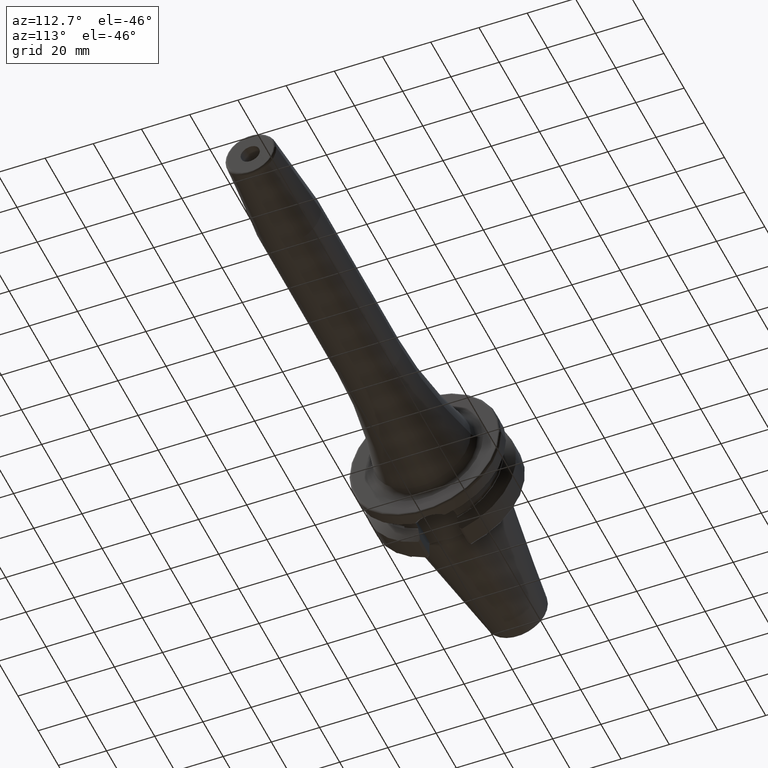
[diagram: clean part render]
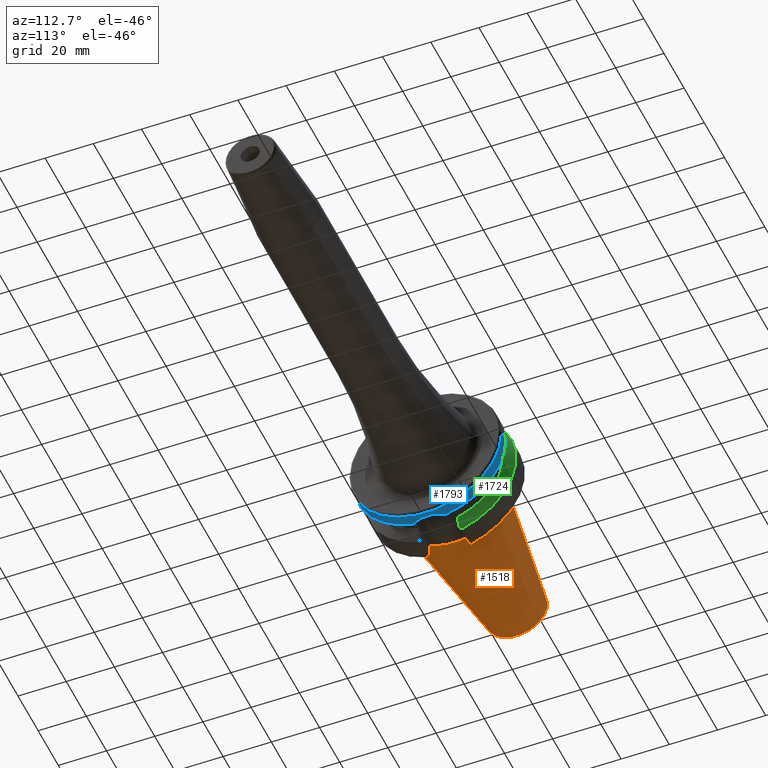
[diagram: same view with three faces highlighted in distinct colors, each labeled with its STEP entity id]
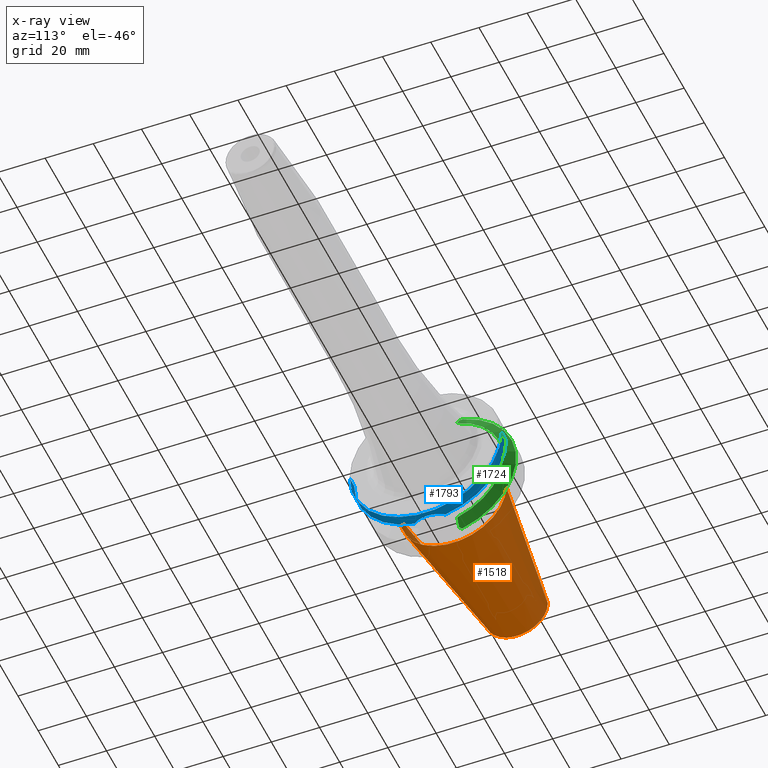
[diagram: x-ray of the same camera — body ghosted, the three highlighted faces saturated]
A machine part, auxiliary view with three faces highlighted in distinct colors.
The next image is the same camera in x-ray (body ghosted, the three faces saturated) — at least one of them is partly hidden behind the body in this view.
Their STEP definitions:

[orange] entity #1518 — the highlighted conical surface has half-angle 8.298 deg.
#32=CARTESIAN_POINT('',(-6.454431866917E1,0.E0,0.E0));
#33=DIRECTION('',(-1.E0,0.E0,0.E0));
#34=DIRECTION('',(0.E0,1.E0,0.E0));
#35=AXIS2_PLACEMENT_3D('',#32,#33,#34);
#47=DIRECTION('',(-9.895312636440E-1,-1.443186691705E-1,0.E0));
#48=VECTOR('',#47,6.394703124850E1);
#49=CARTESIAN_POINT('',(-1.266732031557E0,2.204025284980E1,0.E0));
#50=LINE('',#49,#48);
#51=DIRECTION('',(-9.895312636440E-1,1.443186691705E-1,0.E0));
#52=VECTOR('',#51,6.394703124850E1);
#53=CARTESIAN_POINT('',(-1.266732031557E0,-2.204025284980E1,0.E0));
#54=LINE('',#53,#52);
#55=CARTESIAN_POINT('',(-1.266732031557E0,0.E0,0.E0));
#56=DIRECTION('',(-1.E0,0.E0,0.E0));
#57=DIRECTION('',(0.E0,1.E0,0.E0));
#58=AXIS2_PLACEMENT_3D('',#55,#56,#57);
#1190=CARTESIAN_POINT('',(-6.454431866917E1,1.281150240261E1,0.E0));
#1192=VERTEX_POINT('',#1190);
#1194=CARTESIAN_POINT('',(-6.454431866917E1,-1.281150240261E1,0.E0));
#1196=VERTEX_POINT('',#1194);
#1409=CARTESIAN_POINT('',(-1.266732031557E0,2.204025284980E1,0.E0));
#1410=VERTEX_POINT('',#1409);
#1411=CARTESIAN_POINT('',(-1.266732031557E0,-2.204025284980E1,0.E0));
#1412=VERTEX_POINT('',#1411);
#1506=CARTESIAN_POINT('',(-3.290552535036E1,0.E0,0.E0));
#1507=DIRECTION('',(1.E0,0.E0,0.E0));
#1508=DIRECTION('',(0.E0,-1.E0,0.E0));
#1509=AXIS2_PLACEMENT_3D('',#1506,#1507,#1508);
#1510=CONICAL_SURFACE('',#1509,1.742587762621E1,8.297826828206E0);
#1511=ORIENTED_EDGE('',*,*,#1496,.T.);
#1512=ORIENTED_EDGE('',*,*,#1473,.T.);
#1513=ORIENTED_EDGE('',*,*,#1500,.F.);
#1515=ORIENTED_EDGE('',*,*,#1514,.F.);
#1516=EDGE_LOOP('',(#1511,#1512,#1513,#1515));
#1517=FACE_OUTER_BOUND('',#1516,.F.);
#1518=ADVANCED_FACE('',(#1517),#1510,.T.);
#36=CIRCLE('',#35,1.281150240261E1);
#59=CIRCLE('',#58,2.204025284980E1);
#1473=EDGE_CURVE('',#1192,#1196,#36,.T.);
#1496=EDGE_CURVE('',#1410,#1192,#50,.T.);
#1500=EDGE_CURVE('',#1412,#1196,#54,.T.);
#1514=EDGE_CURVE('',#1410,#1412,#59,.T.);

[blue] entity #1793 — the highlighted cylindrical surface (partial cylindrical patch) has radius 31.4875 mm, axis along (1, 0, 0).
#246=CARTESIAN_POINT('',(2.162727746897E1,0.E0,0.E0));
#247=DIRECTION('',(1.E0,0.E0,0.E0));
#248=DIRECTION('',(0.E0,-1.E0,0.E0));
#249=AXIS2_PLACEMENT_3D('',#246,#247,#248);
#251=DIRECTION('',(-1.E0,0.E0,0.E0));
#252=VECTOR('',#251,4.372722531031E0);
#253=CARTESIAN_POINT('',(2.6E1,-3.14875E1,0.E0));
#254=LINE('',#253,#252);
#255=CARTESIAN_POINT('',(2.6E1,0.E0,0.E0));
#256=DIRECTION('',(-1.E0,0.E0,0.E0));
#257=DIRECTION('',(0.E0,1.E0,0.E0));
#258=AXIS2_PLACEMENT_3D('',#255,#256,#257);
#260=DIRECTION('',(-1.E0,0.E0,0.E0));
#261=VECTOR('',#260,4.372722531031E0);
#262=CARTESIAN_POINT('',(2.6E1,3.14875E1,0.E0));
#263=LINE('',#262,#261);
#264=CARTESIAN_POINT('',(2.162727746897E1,0.E0,0.E0));
#265=DIRECTION('',(1.E0,0.E0,0.E0));
#266=DIRECTION('',(0.E0,2.025221356988E-1,-9.792776851088E-1));
#267=AXIS2_PLACEMENT_3D('',#264,#265,#266);
#269=CARTESIAN_POINT('',(2.162727746897E1,-6.376922817779E0,-3.083500464774E1));
#270=CARTESIAN_POINT('',(2.179639421098E1,-6.206831610819E0,-3.087018371088E1));
#271=CARTESIAN_POINT('',(2.232364867117E1,-5.632321227298E0,-3.098422972396E1));
#272=CARTESIAN_POINT('',(2.308132499159E1,-4.553413356838E0,-3.116719517710E1));
#273=CARTESIAN_POINT('',(2.375642364916E1,-3.096696697708E0,-3.134706212903E1));
#274=CARTESIAN_POINT('',(2.416388565718E1,-1.551520318298E0,-3.146240625515E1));
#275=CARTESIAN_POINT('',(2.429615986887E1,3.673173569156E-2,-3.150094402831E1));
#276=CARTESIAN_POINT('',(2.415103100304E1,1.624802494737E0,-3.145868929477E1));
#277=CARTESIAN_POINT('',(2.373074835246E1,3.167093598881E0,-3.133996423654E1));
#278=CARTESIAN_POINT('',(2.304347310477E1,4.618481554386E0,-3.115752883213E1));
#279=CARTESIAN_POINT('',(2.229119413287E1,5.670903386055E0,-3.097688944820E1));
#280=CARTESIAN_POINT('',(2.177863162319E1,6.224695230405E0,-3.086648974378E1));
#281=CARTESIAN_POINT('',(2.162727746897E1,6.376915747817E0,-3.083500610986E1));
#1246=CARTESIAN_POINT('',(2.162727746897E1,3.14875E1,0.E0));
#1248=VERTEX_POINT('',#1246);
#1250=CARTESIAN_POINT('',(2.162727746897E1,-3.14875E1,0.E0));
#1251=CARTESIAN_POINT('',(2.162727746897E1,-6.376922817779E0,
-3.083500464774E1));
#1252=VERTEX_POINT('',#1250);
#1253=VERTEX_POINT('',#1251);
#1254=CARTESIAN_POINT('',(2.6E1,3.14875E1,0.E0));
#1255=VERTEX_POINT('',#1254);
#1256=CARTESIAN_POINT('',(2.6E1,-3.14875E1,0.E0));
#1257=VERTEX_POINT('',#1256);
#1260=CARTESIAN_POINT('',(2.162727746897E1,6.376915747817E0,-3.083500610986E1));
#1261=VERTEX_POINT('',#1260);
#1774=CARTESIAN_POINT('',(-7.002E1,0.E0,0.E0));
#1775=DIRECTION('',(1.E0,0.E0,0.E0));
#1776=DIRECTION('',(0.E0,-1.E0,0.E0));
#1777=AXIS2_PLACEMENT_3D('',#1774,#1775,#1776);
#1778=CYLINDRICAL_SURFACE('',#1777,3.14875E1);
#1780=ORIENTED_EDGE('',*,*,#1779,.F.);
#1782=ORIENTED_EDGE('',*,*,#1781,.F.);
#1784=ORIENTED_EDGE('',*,*,#1783,.F.);
#1786=ORIENTED_EDGE('',*,*,#1785,.T.);
#1788=ORIENTED_EDGE('',*,*,#1787,.F.);
#1790=ORIENTED_EDGE('',*,*,#1789,.F.);
#1791=EDGE_LOOP('',(#1780,#1782,#1784,#1786,#1788,#1790));
#1792=FACE_OUTER_BOUND('',#1791,.F.);
#1793=ADVANCED_FACE('',(#1792),#1778,.T.);
#250=CIRCLE('',#249,3.14875E1);
#259=CIRCLE('',#258,3.14875E1);
#268=CIRCLE('',#267,3.14875E1);
#282=B_SPLINE_CURVE_WITH_KNOTS('',3,(#269,#270,#271,#272,#273,#274,#275,#276,
#277,#278,#279,#280,#281),.UNSPECIFIED.,.F.,.F.,(4,1,1,1,1,1,1,1,1,1,4),(0.E0,
5.022508536415E-2,1.633285299657E-1,2.764319745673E-1,3.895354191688E-1,
5.026388637704E-1,6.157423083720E-1,7.288457529735E-1,8.419491975751E-1,
9.550526421767E-1,1.E0),.UNSPECIFIED.);
#1779=EDGE_CURVE('',#1252,#1253,#250,.T.);
#1781=EDGE_CURVE('',#1257,#1252,#254,.T.);
#1783=EDGE_CURVE('',#1255,#1257,#259,.T.);
#1785=EDGE_CURVE('',#1255,#1248,#263,.T.);
#1787=EDGE_CURVE('',#1261,#1248,#268,.T.);
#1789=EDGE_CURVE('',#1253,#1261,#282,.T.);

[green] entity #1724 — the highlighted conical surface has half-angle 60 deg.
#155=CARTESIAN_POINT('',(1.212089730171E1,8.095E0,-2.944558475789E1));
#156=CARTESIAN_POINT('',(1.234623272522E1,8.095E0,-2.904081227564E1));
#157=CARTESIAN_POINT('',(1.279052069613E1,8.095E0,-2.824155997645E1));
#158=CARTESIAN_POINT('',(1.343761208926E1,8.095E0,-2.707376738597E1));
#159=CARTESIAN_POINT('',(1.385633764716E1,8.095E0,-2.631545873157E1));
#160=CARTESIAN_POINT('',(1.40625E1,8.095E0,-2.594139336151E1));
#200=CARTESIAN_POINT('',(1.40625E1,0.E0,0.E0));
#201=DIRECTION('',(1.E0,0.E0,0.E0));
#202=DIRECTION('',(0.E0,2.978832194960E-1,-9.546023190537E-1));
#203=AXIS2_PLACEMENT_3D('',#200,#201,#202);
#237=CARTESIAN_POINT('',(1.157272253103E1,0.E0,0.E0));
#238=DIRECTION('',(1.E0,0.E0,0.E0));
#239=DIRECTION('',(0.E0,2.875039130802E-1,-9.577794631143E-1));
#240=AXIS2_PLACEMENT_3D('',#237,#238,#239);
#622=CARTESIAN_POINT('',(1.212089730171E1,8.095E0,-2.944558475789E1));
#623=CARTESIAN_POINT('',(1.203210735485E1,8.251548423090E0,-2.956204177452E1));
#624=CARTESIAN_POINT('',(1.185196062668E1,8.567728822292E0,-2.979724967558E1));
#625=CARTESIAN_POINT('',(1.166666286204E1,8.890070036919E0,-3.003704063260E1));
#626=CARTESIAN_POINT('',(1.157272253103E1,9.052779463114E0,-3.015808084481E1));
#632=CARTESIAN_POINT('',(1.157272253103E1,9.393318983190E0,3.005375541808E1));
#633=CARTESIAN_POINT('',(1.170089151867E1,9.171323784651E0,2.989055444592E1));
#634=CARTESIAN_POINT('',(1.195252831620E1,8.732937755222E0,2.956827258282E1));
#635=CARTESIAN_POINT('',(1.219479613906E1,8.305773148711E0,2.925424020953E1));
#636=CARTESIAN_POINT('',(1.231359829731E1,8.095E0,2.909928918805E1));
#673=CARTESIAN_POINT('',(1.40625E1,8.095E0,2.594139336151E1));
#674=CARTESIAN_POINT('',(1.387619304722E1,8.095E0,2.627943267022E1));
#675=CARTESIAN_POINT('',(1.349822147379E1,8.095E0,2.696405968402E1));
#676=CARTESIAN_POINT('',(1.291532431893E1,8.095E0,2.801651320770E1));
#677=CARTESIAN_POINT('',(1.251595456147E1,8.095E0,2.873548878206E1));
#678=CARTESIAN_POINT('',(1.231359829731E1,8.095E0,2.909928918805E1));
#1238=CARTESIAN_POINT('',(1.40625E1,8.095E0,-2.594139336151E1));
#1239=CARTESIAN_POINT('',(1.40625E1,8.095E0,2.594139336151E1));
#1240=VERTEX_POINT('',#1238);
#1241=VERTEX_POINT('',#1239);
#1346=VERTEX_POINT('',#678);
#1354=VERTEX_POINT('',#155);
#1364=CARTESIAN_POINT('',(1.157272253103E1,9.052779463114E0,-3.015808084481E1));
#1365=CARTESIAN_POINT('',(1.157272253103E1,9.393318983190E0,3.005375541808E1));
#1366=VERTEX_POINT('',#1364);
#1367=VERTEX_POINT('',#1365);
#1707=CARTESIAN_POINT('',(1.281761126552E1,0.E0,0.E0));
#1708=DIRECTION('',(-1.E0,0.E0,0.E0));
#1709=DIRECTION('',(0.E0,1.E0,0.E0));
#1710=AXIS2_PLACEMENT_3D('',#1707,#1708,#1709);
#1711=CONICAL_SURFACE('',#1710,2.933128946210E1,6.E1);
#1713=ORIENTED_EDGE('',*,*,#1712,.F.);
#1715=ORIENTED_EDGE('',*,*,#1714,.F.);
#1716=ORIENTED_EDGE('',*,*,#1658,.T.);
#1717=ORIENTED_EDGE('',*,*,#1681,.T.);
#1719=ORIENTED_EDGE('',*,*,#1718,.T.);
#1721=ORIENTED_EDGE('',*,*,#1720,.F.);
#1722=EDGE_LOOP('',(#1713,#1715,#1716,#1717,#1719,#1721));
#1723=FACE_OUTER_BOUND('',#1722,.F.);
#1724=ADVANCED_FACE('',(#1723),#1711,.T.);
#161=B_SPLINE_CURVE_WITH_KNOTS('',3,(#155,#156,#157,#158,#159,#160),
.UNSPECIFIED.,.F.,.F.,(4,1,1,4),(0.E0,3.333333333333E-1,6.666666666667E-1,1.E0),
.UNSPECIFIED.);
#204=CIRCLE('',#203,2.717507892421E1);
#241=CIRCLE('',#240,3.14875E1);
#627=B_SPLINE_CURVE_WITH_KNOTS('',3,(#622,#623,#624,#625,#626),.UNSPECIFIED.,
.F.,.F.,(4,1,4),(0.E0,5.E-1,1.E0),.UNSPECIFIED.);
#637=B_SPLINE_CURVE_WITH_KNOTS('',3,(#632,#633,#634,#635,#636),.UNSPECIFIED.,
.F.,.F.,(4,1,4),(0.E0,5.E-1,1.E0),.UNSPECIFIED.);
#679=B_SPLINE_CURVE_WITH_KNOTS('',3,(#673,#674,#675,#676,#677,#678),
.UNSPECIFIED.,.F.,.F.,(4,1,1,4),(0.E0,3.333333333333E-1,6.666666666667E-1,1.E0),
.UNSPECIFIED.);
#1658=EDGE_CURVE('',#1354,#1240,#161,.T.);
#1681=EDGE_CURVE('',#1240,#1241,#204,.T.);
#1712=EDGE_CURVE('',#1366,#1367,#241,.T.);
#1714=EDGE_CURVE('',#1354,#1366,#627,.T.);
#1718=EDGE_CURVE('',#1241,#1346,#679,.T.);
#1720=EDGE_CURVE('',#1367,#1346,#637,.T.);